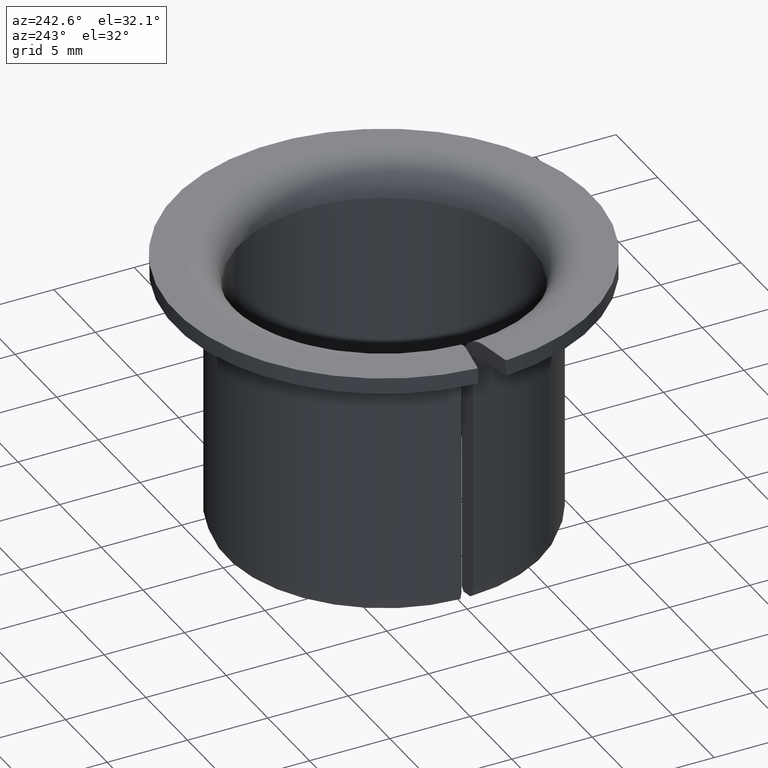
[diagram: clean part render]
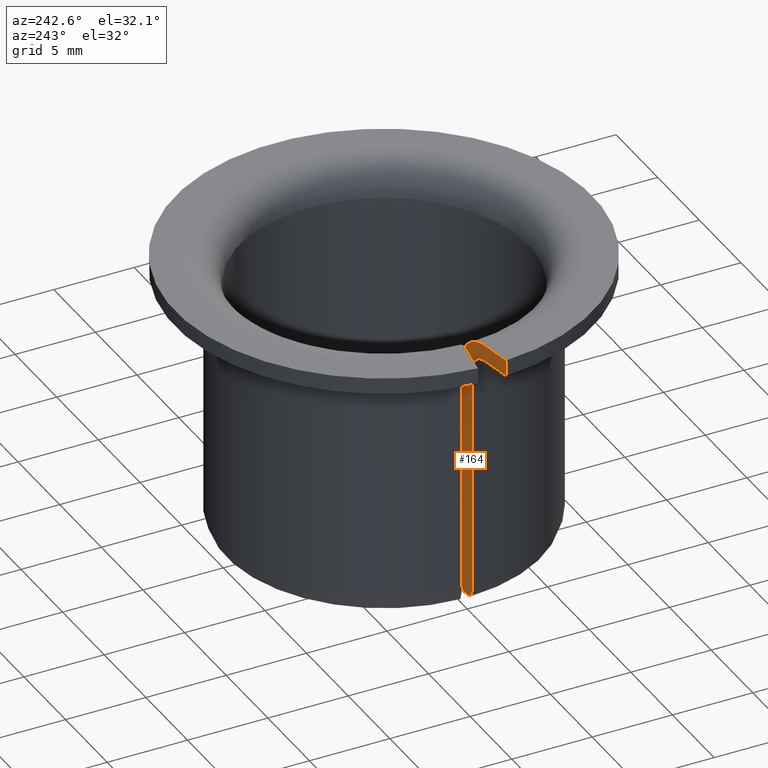
[diagram: same view with one face highlighted and labeled with its STEP entity id]
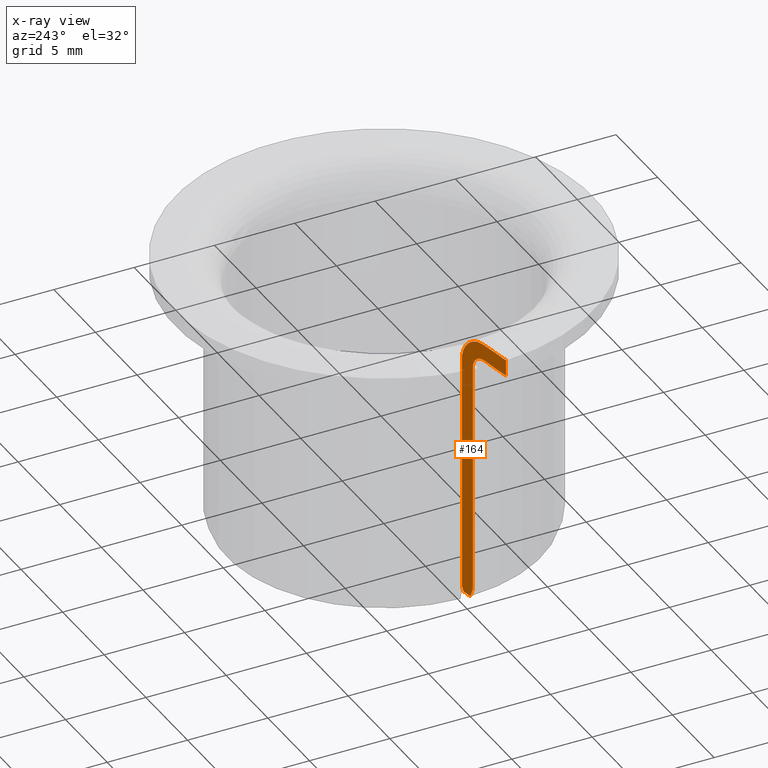
[diagram: x-ray of the same camera — body ghosted, the highlighted face saturated]
A machine part, auxiliary view. The second image highlights one B-rep face of the part: STEP entity #164.
The next image is the same camera in x-ray: the body ghosted, the highlighted face saturated — about 1% of this face is hidden behind the body in this view.
In plain terms, the highlighted planar face has unit normal (-0.1736, 0.9848, 0).
Its self-contained STEP definition (entity closure, byte-faithful):
#164=ADVANCED_FACE('',(#189),#190,.T.);
#189=FACE_OUTER_BOUND('',#214,.T.);
#190=PLANE('',#215);
#214=EDGE_LOOP('',(#299,#300,#301,#302,#303,#304,#305,#306,#307,#308));
#215=AXIS2_PLACEMENT_3D('',#309,#310,#311);
#299=ORIENTED_EDGE('',*,*,#338,.F.);
#300=ORIENTED_EDGE('',*,*,#323,.F.);
#301=ORIENTED_EDGE('',*,*,#340,.T.);
#302=ORIENTED_EDGE('',*,*,#341,.F.);
#303=ORIENTED_EDGE('',*,*,#336,.F.);
#304=ORIENTED_EDGE('',*,*,#329,.F.);
#305=ORIENTED_EDGE('',*,*,#332,.F.);
#306=ORIENTED_EDGE('',*,*,#334,.F.);
#307=ORIENTED_EDGE('',*,*,#335,.T.);
#308=ORIENTED_EDGE('',*,*,#326,.F.);
#309=CARTESIAN_POINT('',(-0.00270955855681633,-0.00188838412504393,-8.81942426655512E-019));
#310=DIRECTION('',(0.173648177666931,-0.984807753012208,9.83497954644252E-017));
#311=DIRECTION('',(-3.54626435696857E-018,-1.00492301674956E-016,-1.0));
#323=EDGE_CURVE('',#362,#364,#365,.T.);
#326=EDGE_CURVE('',#367,#369,#370,.T.);
#329=EDGE_CURVE('',#372,#374,#375,.T.);
#332=EDGE_CURVE('',#377,#372,#379,.T.);
#334=EDGE_CURVE('',#380,#377,#382,.T.);
#335=EDGE_CURVE('',#380,#369,#383,.T.);
#336=EDGE_CURVE('',#374,#384,#385,.T.);
#338=EDGE_CURVE('',#364,#367,#387,.F.);
#340=EDGE_CURVE('',#362,#388,#390,.T.);
#341=EDGE_CURVE('',#384,#388,#391,.T.);
#362=VERTEX_POINT('',#444);
#364=VERTEX_POINT('',#446);
#365=B_SPLINE_CURVE_WITH_KNOTS('',3,(#447,#448,#449,#450),.UNSPECIFIED.,.F.,.F.,(4,4),(2.3161669154586E-007,0.000347676640330094),.UNSPECIFIED.);
#367=VERTEX_POINT('',#452);
#369=VERTEX_POINT('',#454);
#370=B_SPLINE_CURVE_WITH_KNOTS('',3,(#455,#456,#457,#458,#459,#460,#461,#462,#463,#464,#465,#466,#467,#468),.UNSPECIFIED.,.F.,.F.,(4,2,2,2,2,2,4),(1.97146796340458E-007,0.000392629396224663,0.000785061645652985,0.00117749389508131,0.00156992614450963,0.00235479064336627,0.00313965514222291),.UNSPECIFIED.);
#372=VERTEX_POINT('',#470);
#374=VERTEX_POINT('',#472);
#375=B_SPLINE_CURVE_WITH_KNOTS('',3,(#473,#474,#475,#476,#477,#478,#479,#480),.UNSPECIFIED.,.F.,.F.,(4,2,2,4),(1.28469300528228E-005,0.000405134983641965,0.000797423037231107,0.00158199914440938),.UNSPECIFIED.);
#377=VERTEX_POINT('',#482);
#379=LINE('',#484,#485);
#380=VERTEX_POINT('',#486);
#382=LINE('',#488,#489);
#383=LINE('',#490,#491);
#384=VERTEX_POINT('',#492);
#385=LINE('',#493,#494);
#387=LINE('',#496,#497);
#388=VERTEX_POINT('',#498);
#390=LINE('',#500,#501);
#391=B_SPLINE_CURVE_WITH_KNOTS('',3,(#502,#503,#504,#505),.UNSPECIFIED.,.F.,.F.,(4,4),(2.13080374666438E-007,0.000639470931065649),.UNSPECIFIED.);
#444=CARTESIAN_POINT('',(0.00917088144900545,0.000206457990670684,6.18183345418276E-019));
#446=CARTESIAN_POINT('',(0.00899827848821545,0.000176023431733242,0.0003));
#447=CARTESIAN_POINT('',(0.00917088144900545,0.000206457990670685,-1.5597946929146E-018));
#448=CARTESIAN_POINT('',(0.00911335681991258,0.000196314846506366,0.000100005748456389));
#449=CARTESIAN_POINT('',(0.009055822688943,0.000186170026904813,0.000200005862075899));
#450=CARTESIAN_POINT('',(0.00899827848821545,0.000176023431733242,0.000299999999999999));
#452=CARTESIAN_POINT('',(0.00899827848821545,0.000176023431733242,0.015));
#454=CARTESIAN_POINT('',(0.0109873804139217,0.00052675576861443,0.017));
#455=CARTESIAN_POINT('',(0.00899827848821545,0.000176023431733244,0.015));
#456=CARTESIAN_POINT('',(0.00899827848821545,0.000176023431733244,0.0151327027598317));
#457=CARTESIAN_POINT('',(0.009011313104869,0.000178321786332458,0.0152631462580258));
#458=CARTESIAN_POINT('',(0.0090623440155144,0.000187319912729365,0.0155197067013958));
#459=CARTESIAN_POINT('',(0.00910098482158335,0.000194133329395643,0.0156471812173767));
#460=CARTESIAN_POINT('',(0.00920156248713464,0.000211867885489008,0.0158897375650331));
#461=CARTESIAN_POINT('',(0.00926305979009853,0.000222711519242344,0.0160047109125508));
#462=CARTESIAN_POINT('',(0.00940821471688992,0.000248306249218429,0.0162221923048572));
#463=CARTESIAN_POINT('',(0.00949246000467102,0.000263160966451787,0.0163248593110095));
#464=CARTESIAN_POINT('',(0.00976805187156391,0.000311755248248819,0.016600731564796));
#465=CARTESIAN_POINT('',(0.00998965439959793,0.00035082975293442,0.0167489639091345));
#466=CARTESIAN_POINT('',(0.0104665012420696,0.000434910716927813,0.0169473713973998));
#467=CARTESIAN_POINT('',(0.0107262661630752,0.000480714281142696,0.017));
#468=CARTESIAN_POINT('',(0.0109873804139217,0.000526755768614428,0.017));
#470=CARTESIAN_POINT('',(0.0109873804139217,0.000526755768614429,0.016));
#472=CARTESIAN_POINT('',(0.00999381822879573,0.000351563948365053,0.015));
#473=CARTESIAN_POINT('',(0.0109873804139217,0.000526755768614428,0.016));
#474=CARTESIAN_POINT('',(0.0108570272527666,0.000503770989282141,0.016));
#475=CARTESIAN_POINT('',(0.0107285426564671,0.000481115688349094,0.0159742050190872));
#476=CARTESIAN_POINT('',(0.0104888505793432,0.000438851508090102,0.0158746681381106));
#477=CARTESIAN_POINT('',(0.0103785967846507,0.000419410789360322,0.0158008061623736));
#478=CARTESIAN_POINT('',(0.0101031235107226,0.000370837418702714,0.0155250309862322));
#479=CARTESIAN_POINT('',(0.00999381822879254,0.000351563948364491,0.0152653419611276));
#480=CARTESIAN_POINT('',(0.00999381822879243,0.000351563948364473,0.0150000000000004));
#482=CARTESIAN_POINT('',(0.0129704235998045,0.000876419786195625,0.016));
#484=CARTESIAN_POINT('',(0.0109095389311789,0.000513030214988504,0.016));
#485=VECTOR('',#533,1.0);
#486=CARTESIAN_POINT('',(0.0129704235998045,0.000876419786195627,0.017));
#488=CARTESIAN_POINT('',(0.0129704235998045,0.000876419786195623,-8.09906996731578E-022));
#489=VECTOR('',#537,1.0);
#490=CARTESIAN_POINT('',(0.0158784620240977,0.00138918542133544,0.017));
#491=VECTOR('',#538,1.0);
#492=CARTESIAN_POINT('',(0.00999381822879574,0.000351563948365053,0.0006));
#493=CARTESIAN_POINT('',(0.00999381822879573,0.000351563948365052,3.1328244093919E-020));
#494=VECTOR('',#539,1.0);
#496=CARTESIAN_POINT('',(0.00899827848821545,0.000176023431733241,4.207700068461E-020));
#497=VECTOR('',#543,1.0);
#498=CARTESIAN_POINT('',(0.00977660035524845,0.000313262576566544,-5.23534779928966E-020));
#500=CARTESIAN_POINT('',(0.008,0.0,6.43083039248804E-019));
#501=VECTOR('',#547,1.0);
#502=CARTESIAN_POINT('',(0.00999381822879574,0.000351563948365054,0.000600000000000001));
#503=CARTESIAN_POINT('',(0.00992142628610994,0.000338799295683647,0.000399994768914259));
#504=CARTESIAN_POINT('',(0.00984902064639177,0.000326032227845877,0.000199994648984623));
#505=CARTESIAN_POINT('',(0.00977660035524844,0.000313262576566546,2.67959388605933E-018));
#533=DIRECTION('',(-0.984807753012208,-0.173648177666931,1.06328842478789E-017));
#537=DIRECTION('',(0.0,-6.12323399573677E-017,-1.0));
#538=DIRECTION('',(-0.984807753012208,-0.173648177666931,2.0942693688385E-017));
#539=DIRECTION('',(0.0,-6.12323399573677E-017,-1.0));
#543=DIRECTION('',(0.0,-6.12323399573677E-017,-1.0));
#547=DIRECTION('',(0.984807753012208,0.173648177666931,-2.0942693688385E-017));